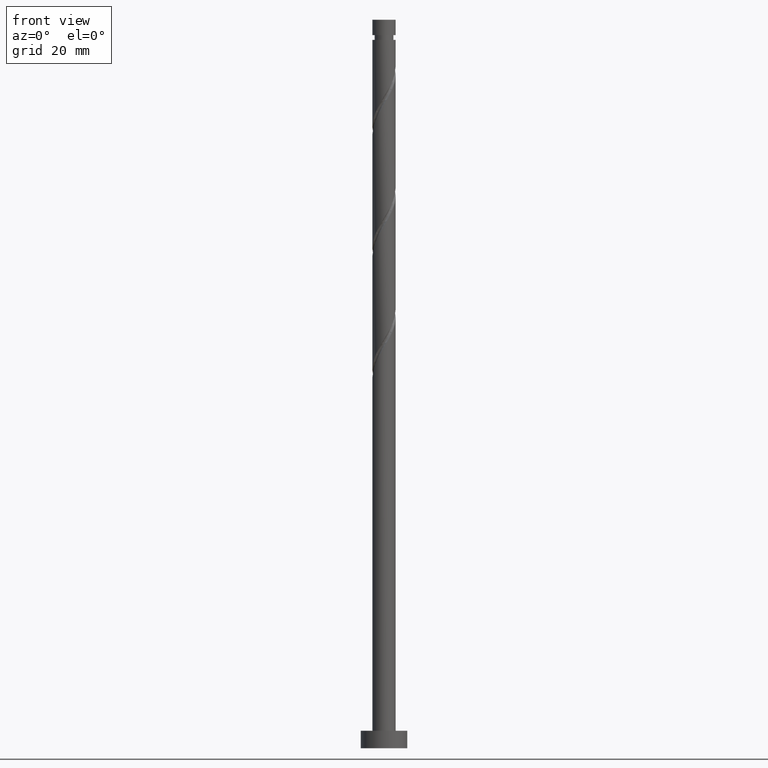
[diagram: clean part render]
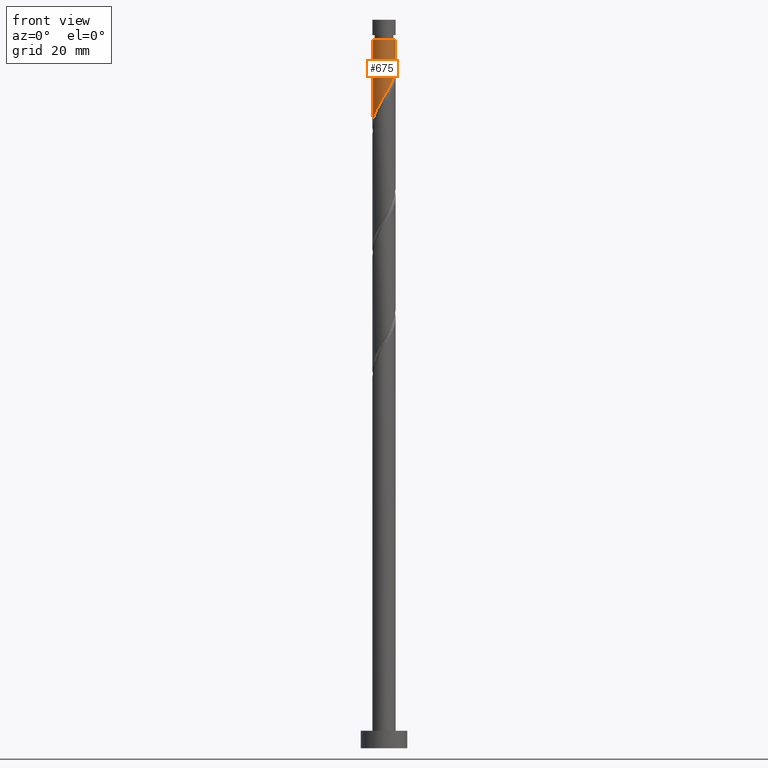
[diagram: same view with one face highlighted and labeled with its STEP entity id]
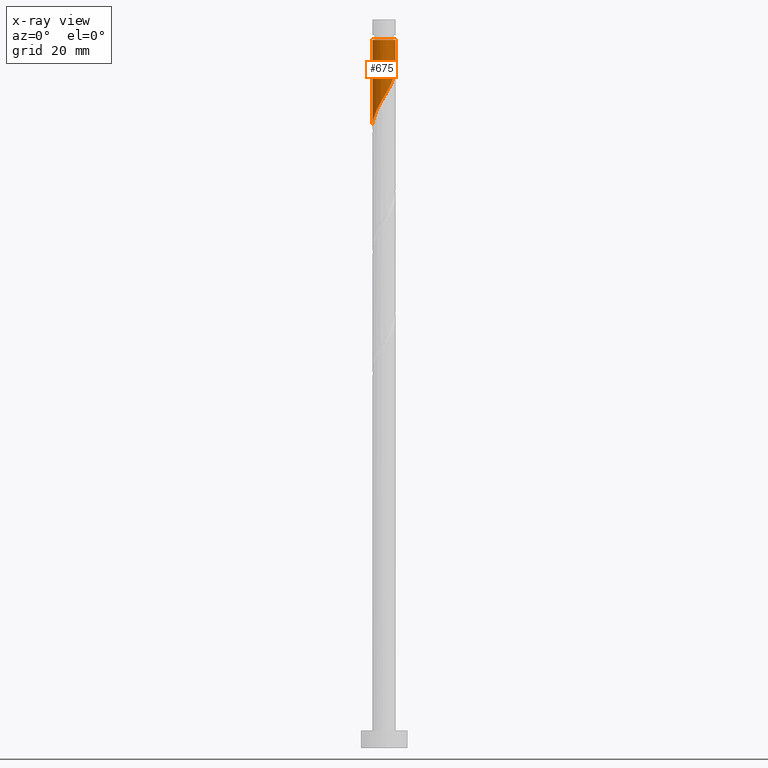
[diagram: x-ray of the same camera — body ghosted, the highlighted face saturated]
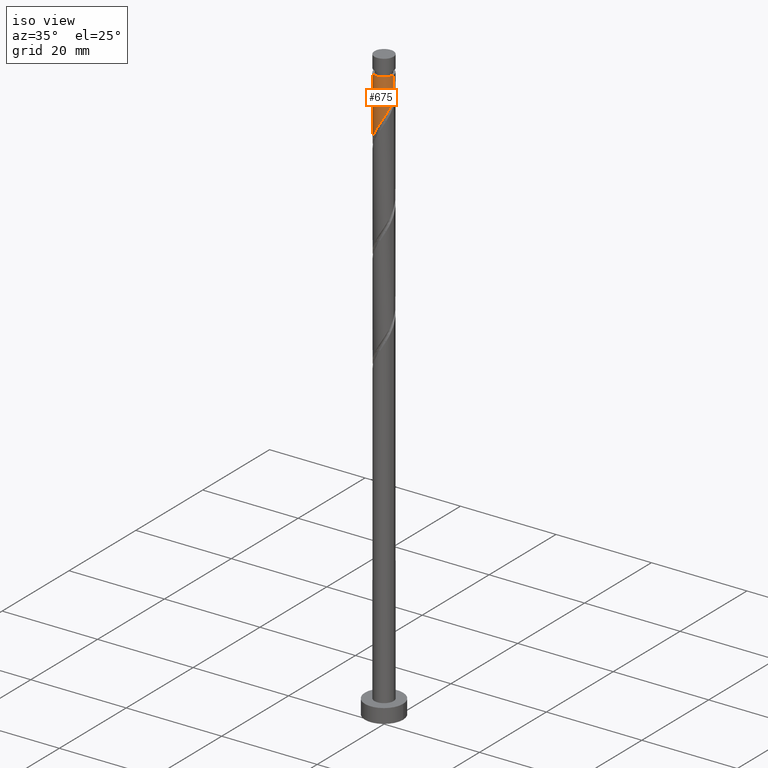
[diagram: same view with one face highlighted and labeled with its STEP entity id]
A machine part, front view. The second image highlights one B-rep face of the part: STEP entity #675.
The next image is the same camera in x-ray: the body ghosted, the highlighted face saturated — about 0% of this face is hidden behind the body in this view.
A second angle (iso view) of the same face is appended — the face is thin or edge-on in the first view.
In plain terms, the highlighted cylindrical surface (edge-blend (fillet) strip) has radius 2 mm, axis along (-0, -0, -1).
Its self-contained STEP definition (entity closure, byte-faithful):
#21 = DIRECTION ( 'NONE',  ( -1.000000000000000000, 0.000000000000000000, 0.000000000000000000 ) ) ;
#30 = EDGE_LOOP ( 'NONE', ( #1463, #1456, #349, #1437 ) ) ;
#37 = EDGE_CURVE ( 'NONE', #475, #251, #1070, .T. ) ;
#47 = CARTESIAN_POINT ( 'NONE',  ( 0.2271575946980702587, -1.987057982840708892, 112.1802847874142657 ) ) ;
#52 = FACE_OUTER_BOUND ( 'NONE', #30, .T. ) ;
#64 = CARTESIAN_POINT ( 'NONE',  ( -1.999999999999999556, 1.529296483886990492E-15, 106.5950872288845090 ) ) ;
#140 = CARTESIAN_POINT ( 'NONE',  ( -1.951079754338987504, -0.5418766612026980622, 107.4927847874142799 ) ) ;
#157 = CARTESIAN_POINT ( 'NONE',  ( 1.585203333415016624, -1.259949568624707306, 114.7844514540809371 ) ) ;
#217 = EDGE_CURVE ( 'NONE', #449, #1222, #1110, .T. ) ;
#247 = CARTESIAN_POINT ( 'NONE',  ( 1.959999999999999520, -0.3979949748426485634, 116.3469514540809371 ) ) ;
#248 = CARTESIAN_POINT ( 'NONE',  ( 2.000000000000000000, 2.449293598294705921E-16, 125.0000000000000000 ) ) ;
#251 = VERTEX_POINT ( 'NONE', #64 ) ;
#280 = CARTESIAN_POINT ( 'NONE',  ( -1.688138017008851355, -1.118272131136731851, 108.5344514540809371 ) ) ;
#311 = CARTESIAN_POINT ( 'NONE',  ( 2.000000000000000000, 1.004537886474788021E-15, 117.0117538955511947 ) ) ;
#349 = ORIENTED_EDGE ( 'NONE', *, *, #37, .T. ) ;
#377 = DIRECTION ( 'NONE',  ( -0.000000000000000000, -0.000000000000000000, -1.000000000000000000 ) ) ;
#382 = CARTESIAN_POINT ( 'NONE',  ( -0.9841890232517231940, -1.741083561036292915, 110.0969514540809229 ) ) ;
#389 = CARTESIAN_POINT ( 'NONE',  ( -1.999999999999999556, 1.529296483886990492E-15, 106.5950872288845090 ) ) ;
#408 = CARTESIAN_POINT ( 'NONE',  ( 0.000000000000000000, 0.000000000000000000, 125.0000000000000000 ) ) ;
#449 = VERTEX_POINT ( 'NONE', #1167 ) ;
#475 = VERTEX_POINT ( 'NONE', #590 ) ;
#489 = DIRECTION ( 'NONE',  ( -0.000000000000000000, -0.000000000000000000, -1.000000000000000000 ) ) ;
#518 = CARTESIAN_POINT ( 'NONE',  ( 1.741083561036292915, -0.9841890232517231940, 115.3052847874142657 ) ) ;
#524 = CARTESIAN_POINT ( 'NONE',  ( -1.474043792816779330, -1.351737732275873904, 109.0552847874142657 ) ) ;
#590 = CARTESIAN_POINT ( 'NONE',  ( -1.999999999999997335, 0.000000000000000000, 121.5552847874142515 ) ) ;
#629 = CARTESIAN_POINT ( 'NONE',  ( 1.118272131136731851, -1.688138017008851577, 113.7427847874142799 ) ) ;
#636 = CARTESIAN_POINT ( 'NONE',  ( 2.000000000000000888, -0.2010075630518380618, 116.6774493201433245 ) ) ;
#646 = AXIS2_PLACEMENT_3D ( 'NONE', #1337, #377, #1218 ) ;
#675 = ADVANCED_FACE ( 'NONE', ( #52 ), #1363, .T. ) ;
#720 = CIRCLE ( 'NONE', #646, 1.999999999999997335 ) ;
#745 = CARTESIAN_POINT ( 'NONE',  ( 1.896963788657568761, -0.7084284778787396375, 115.8261181207476369 ) ) ;
#838 = CARTESIAN_POINT ( 'NONE',  ( 1.351737732275873904, -1.474043792816779330, 114.2636181207475943 ) ) ;
#847 = CARTESIAN_POINT ( 'NONE',  ( -2.000000000000000000, 0.000000000000000000, 125.0000000000000000 ) ) ;
#957 = VECTOR ( 'NONE', #1566, 1000.000000000000000 ) ;
#976 = CARTESIAN_POINT ( 'NONE',  ( 0.5418766612026979512, -1.951079754338987060, 112.7011181207476085 ) ) ;
#982 = CARTESIAN_POINT ( 'NONE',  ( -0.3979949748426485079, -1.959999999999999520, 111.1386181207475801 ) ) ;
#1000 = CARTESIAN_POINT ( 'NONE',  ( 0.8300743961697149009, -1.819608885673919207, 113.2219514540809229 ) ) ;
#1006 = CARTESIAN_POINT ( 'NONE',  ( -1.987057982840708892, -0.2271575946980704253, 106.9719514540809371 ) ) ;
#1059 = EDGE_CURVE ( 'NONE', #1222, #251, #1542, .T. ) ;
#1070 = LINE ( 'NONE', #847, #957 ) ;
#1099 = DIRECTION ( 'NONE',  ( -0.000000000000000000, -0.000000000000000000, -1.000000000000000000 ) ) ;
#1110 = LINE ( 'NONE', #248, #1391 ) ;
#1167 = CARTESIAN_POINT ( 'NONE',  ( 1.999999999999997335, 2.449293598294704442E-16, 121.5552847874142515 ) ) ;
#1218 = DIRECTION ( 'NONE',  ( -1.000000000000000000, 0.000000000000000000, 0.000000000000000000 ) ) ;
#1221 = CARTESIAN_POINT ( 'NONE',  ( 2.000000000000000000, 1.004537886474788021E-15, 117.0117538955511947 ) ) ;
#1222 = VERTEX_POINT ( 'NONE', #311 ) ;
#1332 = CARTESIAN_POINT ( 'NONE',  ( -1.999999999999999556, -0.1139474748928619996, 106.7845983180917955 ) ) ;
#1337 = CARTESIAN_POINT ( 'NONE',  ( 0.000000000000000000, 0.000000000000000000, 121.5552847874142515 ) ) ;
#1342 = CARTESIAN_POINT ( 'NONE',  ( -0.08756147180655739215, -2.023036211342430946, 111.6594514540809513 ) ) ;
#1363 = CYLINDRICAL_SURFACE ( 'NONE', #1421, 2.000000000000000000 ) ;
#1364 = CARTESIAN_POINT ( 'NONE',  ( -0.7084284778787396375, -1.896963788657568761, 110.6177847874142515 ) ) ;
#1391 = VECTOR ( 'NONE', #489, 1000.000000000000000 ) ;
#1421 = AXIS2_PLACEMENT_3D ( 'NONE', #408, #1099, #21 ) ;
#1437 = ORIENTED_EDGE ( 'NONE', *, *, #1059, .F. ) ;
#1456 = ORIENTED_EDGE ( 'NONE', *, *, #1494, .T. ) ;
#1463 = ORIENTED_EDGE ( 'NONE', *, *, #217, .F. ) ;
#1465 = CARTESIAN_POINT ( 'NONE',  ( -1.259949568624707306, -1.585203333415016624, 109.5761181207475943 ) ) ;
#1489 = CARTESIAN_POINT ( 'NONE',  ( -1.819608885673919207, -0.8300743961697149009, 108.0136181207475801 ) ) ;
#1494 = EDGE_CURVE ( 'NONE', #449, #475, #720, .T. ) ;
#1542 =( BOUNDED_CURVE ( )  B_SPLINE_CURVE ( 2, ( #1221, #636, #247, #745, #518, #157, #838, #629, #1000, #976, #47, #1342, #982, #1364, #382, #1465, #524, #280, #1489, #140, #1006, #1332, #389 ),
 .UNSPECIFIED., .F., .T. ) 
 B_SPLINE_CURVE_WITH_KNOTS ( ( 3, 2, 2, 2, 2, 2, 2, 2, 2, 2, 2, 3 ),
 ( 0.3045322023138549716, 0.3125000000000000000, 0.3250000000000000111, 0.3375000000000000222, 0.3499999999999999778, 0.3624999999999999889, 0.3750000000000000000, 0.3875000000000000111, 0.4000000000000000222, 0.4124999999999999778, 0.4249999999999999889, 0.4295322023138553047 ),
 .UNSPECIFIED. ) 
 CURVE ( )  GEOMETRIC_REPRESENTATION_ITEM ( )  RATIONAL_B_SPLINE_CURVE ( ( 0.9039174447099360687, 0.9019565955404651447, 0.9090909090909136125, 0.8978984914501296766, 0.9090909090909136125, 0.8978984914501296766, 0.9090909090909136125, 0.8978984914501296766, 0.9090909090909136125, 0.8978984914501296766, 0.9090909090909136125, 0.8978984914501296766, 0.9090909090909136125, 0.8978984914501296766, 0.9090909090909136125, 0.8978984914501296766, 0.9090909090909136125, 0.8978984914501296766, 0.9090909090909136125, 0.8978984914501296766, 0.9090909090909136125, 0.9050328050005780334, 0.9039174447099358467 ) ) 
 REPRESENTATION_ITEM ( '' )  );
#1566 = DIRECTION ( 'NONE',  ( -0.000000000000000000, -0.000000000000000000, -1.000000000000000000 ) ) ;